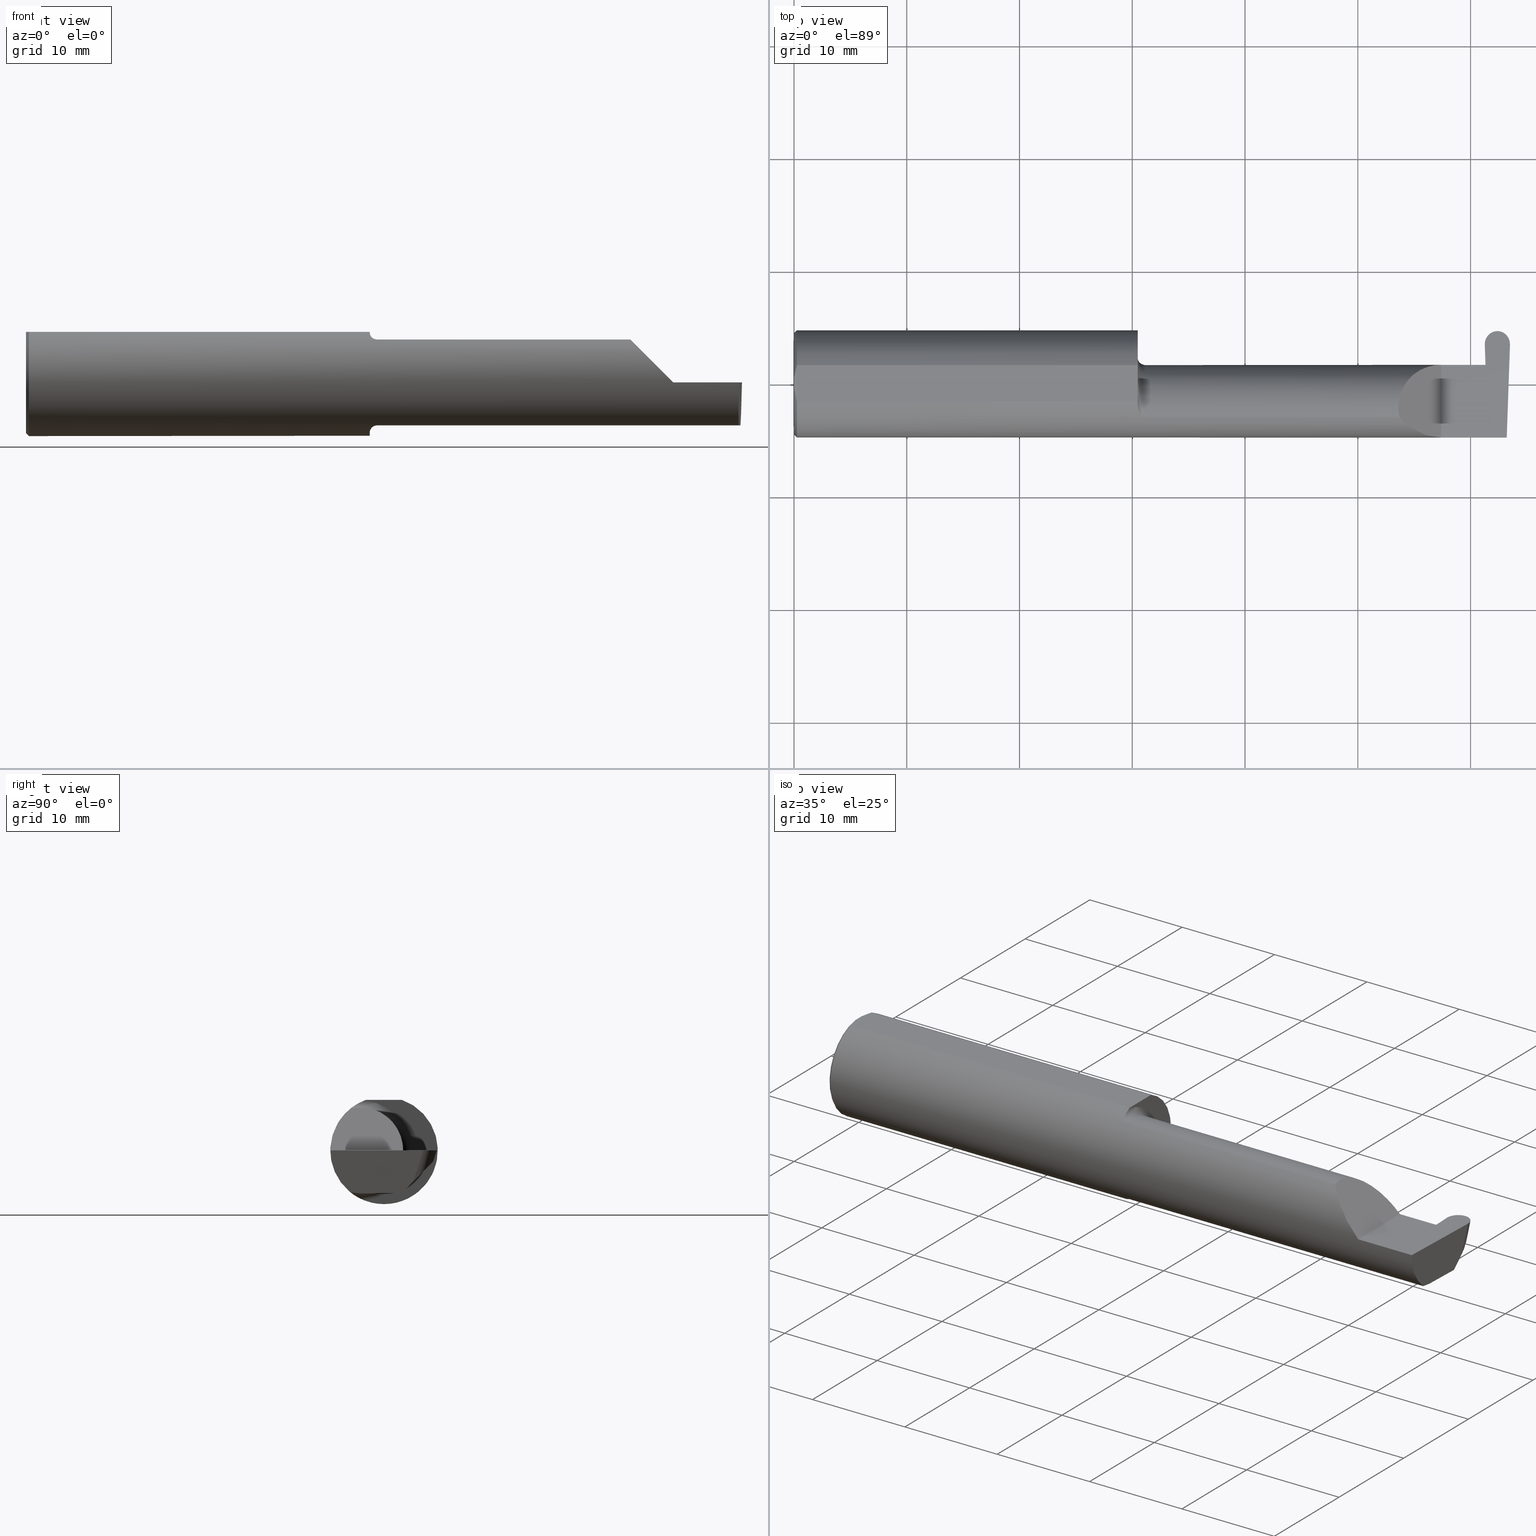
[diagram: canonical four-view strip — front | top / right | iso, engineering-drawing reading convention]
A machine part, canonical four-view strip (front | top / right | iso — engineering-drawing reading convention). The complete STEP part file that produces these views, byte-faithful:
ISO-10303-21;
HEADER;
FILE_DESCRIPTION (( 'STEP AP203' ),
    '1' );
FILE_NAME ('222185-GFR087-20.STEP',
    '2024-06-28T18:13:26',
    ( '' ),
    ( '' ),
    'SwSTEP 2.0',
    'SolidWorks 2024',
    '' );
FILE_SCHEMA (( 'CONFIG_CONTROL_DESIGN' ));
ENDSEC;

DATA;
#1 = LINE ( 'NONE', #546, #361 ) ;
#2 = DIRECTION ( 'NONE',  ( 0.000000000000000000, 0.000000000000000000, -1.000000000000000000 ) ) ;
#3 = EDGE_CURVE ( 'NONE', #35, #99, #77, .T. ) ;
#4 =( NAMED_UNIT ( * ) SI_UNIT ( $, .STERADIAN. ) SOLID_ANGLE_UNIT ( ) );
#5 = DIRECTION ( 'NONE',  ( 1.000000000000000000, 0.000000000000000000, 0.000000000000000000 ) ) ;
#6 = DIRECTION ( 'NONE',  ( 0.000000000000000000, 0.000000000000000000, 1.000000000000000000 ) ) ;
#7 = MANIFOLD_SOLID_BREP ( 'Radii', #117 ) ;
#8 = CARTESIAN_POINT ( 'NONE',  ( 0.01000000000000013205, 0.06325108694718235836, 0.1763499999999999235 ) ) ;
#9 = APPROVAL_STATUS ( 'not_yet_approved' ) ;
#10 = CARTESIAN_POINT ( 'NONE',  ( 2.414454177608814867, 0.06655862405286415429, -0.005234924505383332580 ) ) ;
#11 = VERTEX_POINT ( 'NONE', #30 ) ;
#12 = DIRECTION ( 'NONE',  ( -0.7071067811865509034, 0.000000000000000000, 0.7071067811865440200 ) ) ;
#13 = ADVANCED_FACE ( 'NONE', ( #186 ), #129, .T. ) ;
#14 = ORIENTED_EDGE ( 'NONE', *, *, #677, .T. ) ;
#15 = DIRECTION ( 'NONE',  ( -0.03489949670249319069, -0.9993908270190959842, 0.000000000000000000 ) ) ;
#16 = EDGE_LOOP ( 'NONE', ( #609, #96, #280, #514 ) ) ;
#17 = VECTOR ( 'NONE', #204, 39.37007874015748143 ) ;
#18 = DIRECTION ( 'NONE',  ( 0.02739170151060012562, -0.3089010440752013031, -0.9506996579664920288 ) ) ;
#19 = EDGE_LOOP ( 'NONE', ( #42, #381, #375 ) ) ;
#20 = EDGE_CURVE ( 'NONE', #634, #535, #571, .T. ) ;
#21 = COORDINATED_UNIVERSAL_TIME_OFFSET ( 8, 0, .BEHIND. ) ;
#22 = CARTESIAN_POINT ( 'NONE',  ( 2.113883229301068756, -0.1172600179964011363, 0.1461167706989299764 ) ) ;
#23 = DIRECTION ( 'NONE',  ( 0.000000000000000000, 0.000000000000000000, -1.000000000000000000 ) ) ;
#24 = APPROVAL_DATE_TIME ( #74, #510 ) ;
#25 = DIRECTION ( 'NONE',  ( -1.000000000000000000, 0.000000000000000000, 1.224646799147353947E-16 ) ) ;
#26 = CARTESIAN_POINT ( 'NONE',  ( 2.260000000000000231, -0.1873499999999999888, 2.939152317953647352E-17 ) ) ;
#27 = CC_DESIGN_APPROVAL ( #620, ( #574 ) ) ;
#28 = ORIENTED_EDGE ( 'NONE', *, *, #199, .F. ) ;
#29 = DIRECTION ( 'NONE',  ( 0.02739170151060012909, -0.3089010440752013031, -0.9506996579664919178 ) ) ;
#30 = CARTESIAN_POINT ( 'NONE',  ( 2.456309424548497322, 0.1846500000000000363, 0.000000000000000000 ) ) ;
#31 = ORIENTED_EDGE ( 'NONE', *, *, #244, .T. ) ;
#32 = DIRECTION ( 'NONE',  ( -0.03701744261649742712, -0.7066221440565398915, -0.7066221440565478851 ) ) ;
#33 = DIRECTION ( 'NONE',  ( 1.000000000000000000, -0.000000000000000000, -0.000000000000000000 ) ) ;
#34 = EDGE_CURVE ( 'NONE', #580, #468, #623, .T. ) ;
#35 = VERTEX_POINT ( 'NONE', #193 ) ;
#36 = CARTESIAN_POINT ( 'NONE',  ( 1.225000000000000089, -0.08335000000000010456, 0.000000000000000000 ) ) ;
#37 = CARTESIAN_POINT ( 'NONE',  ( 2.488471823259917226, -0.1172600179964006922, -0.1461167706989302817 ) ) ;
#38 = VECTOR ( 'NONE', #32, 39.37007874015748854 ) ;
#39 = VERTEX_POINT ( 'NONE', #464 ) ;
#40 = CARTESIAN_POINT ( 'NONE',  ( 2.489588163846105484, -0.08334999999999995191, -0.1500000000000000500 ) ) ;
#41 = CARTESIAN_POINT ( 'NONE',  ( 2.487529306701961485, -0.1623470442677541203, -0.1099340280425338268 ) ) ;
#42 = ORIENTED_EDGE ( 'NONE', *, *, #592, .F. ) ;
#43 = EDGE_CURVE ( 'NONE', #582, #176, #600, .T. ) ;
#44 = CARTESIAN_POINT ( 'NONE',  ( 0.01000000000000013205, 0.000000000000000000, -0.1873499999999999888 ) ) ;
#45 = LINE ( 'NONE', #422, #515 ) ;
#46 = ORIENTED_EDGE ( 'NONE', *, *, #226, .T. ) ;
#47 = CARTESIAN_POINT ( 'NONE',  ( 2.455902844999999779, 0.1800649307963945456, -0.01411139200474581350 ) ) ;
#48 = CARTESIAN_POINT ( 'NONE',  ( 2.417363697998881733, -2.354248658836814556, -0.1239957194858760936 ) ) ;
#49 = ORIENTED_EDGE ( 'NONE', *, *, #267, .F. ) ;
#50 = LOCAL_TIME ( 11, 13, 26.00000000000000000, #273 ) ;
#51 = COORDINATED_UNIVERSAL_TIME_OFFSET ( 8, 0, .BEHIND. ) ;
#52 = PLANE ( 'NONE',  #518 ) ;
#53 = APPROVAL_ROLE ( '' ) ;
#54 = CARTESIAN_POINT ( 'NONE',  ( 0.001616639753276021213, 0.03405189565400638246, 0.1763499999999999235 ) ) ;
#55 = DIRECTION ( 'NONE',  ( 1.000000000000000000, 0.000000000000000000, 0.000000000000000000 ) ) ;
#56 = DIRECTION ( 'NONE',  ( 0.000000000000000000, -1.000000000000000000, 0.000000000000000000 ) ) ;
#57 =( BOUNDED_CURVE ( )  B_SPLINE_CURVE ( 3, ( #47, #371, #687, #207 ),
 .UNSPECIFIED., .F., .T. ) 
 B_SPLINE_CURVE_WITH_KNOTS ( ( 4, 4 ),
 ( 4.712388980384693227, 4.728033103810992621 ),
 .UNSPECIFIED. ) 
 CURVE ( )  GEOMETRIC_REPRESENTATION_ITEM ( )  RATIONAL_B_SPLINE_CURVE ( ( 1.000000000000000000, 0.9999796052208393959, 0.9999796052208393959, 1.000000000000000000 ) ) 
 REPRESENTATION_ITEM ( '' )  );
#58 = CC_DESIGN_PERSON_AND_ORGANIZATION_ASSIGNMENT ( #321, #604, ( #448 ) ) ;
#59 = LOCAL_TIME ( 11, 13, 26.00000000000000000, #326 ) ;
#60 = ORGANIZATION ( 'UNSPECIFIED', 'UNSPECIFIED', '' ) ;
#61 = CARTESIAN_POINT ( 'NONE',  ( 2.414359555045604289, 0.06664999999999991764, -9.645561665750322649E-21 ) ) ;
#62 = ORIENTED_EDGE ( 'NONE', *, *, #284, .F. ) ;
#63 = PERSON_AND_ORGANIZATION_ROLE ( 'design_supplier' ) ;
#64 =( BOUNDED_CURVE ( )  B_SPLINE_CURVE ( 3, ( #625, #141, #678, #556 ),
 .UNSPECIFIED., .F., .F. ) 
 B_SPLINE_CURVE_WITH_KNOTS ( ( 4, 4 ),
 ( 1.627103621474502049, 3.225696776093220475 ),
 .UNSPECIFIED. ) 
 CURVE ( )  GEOMETRIC_REPRESENTATION_ITEM ( )  RATIONAL_B_SPLINE_CURVE ( ( 1.000000000000000000, 0.7981407609938095948, 0.7981407609938095948, 1.000000000000000000 ) ) 
 REPRESENTATION_ITEM ( '' )  );
#65 = EDGE_CURVE ( 'NONE', #490, #11, #64, .T. ) ;
#66 = DIRECTION ( 'NONE',  ( -1.000000000000000000, -8.453855317547640226E-17, -0.000000000000000000 ) ) ;
#67 = EDGE_CURVE ( 'NONE', #102, #363, #702, .T. ) ;
#68 = VERTEX_POINT ( 'NONE', #352 ) ;
#69 = LINE ( 'NONE', #351, #421 ) ;
#70 = DIRECTION ( 'NONE',  ( -1.000000000000000000, -8.453855317547640226E-17, -0.000000000000000000 ) ) ;
#71 = FACE_OUTER_BOUND ( 'NONE', #202, .T. ) ;
#72 = CIRCLE ( 'NONE', #224, 0.1873499999999999888 ) ;
#73 = CARTESIAN_POINT ( 'NONE',  ( 2.411899392914586659, 0.1370998259008695541, 0.000000000000000000 ) ) ;
#74 = DATE_AND_TIME ( #669, #299 ) ;
#75 = B_SPLINE_CURVE_WITH_KNOTS ( 'NONE', 3,
 ( #616, #188, #681, #404, #355, #131, #173, #511, #123, #566, #413, #613 ),
 .UNSPECIFIED., .F., .F.,
 ( 4, 2, 2, 2, 2, 4 ),
 ( 4.423516731080811751E-05, 0.0004615475116586728187, 0.0008788598560065375266, 0.001296172200354402289, 0.001504828372528334507, 0.001713484544702266943 ),
 .UNSPECIFIED. ) ;
#76 = CARTESIAN_POINT ( 'NONE',  ( 2.405177986947488300, 0.06658908270190946888, -0.003489949670251385645 ) ) ;
#77 = LINE ( 'NONE', #132, #444 ) ;
#78 = DIRECTION ( 'NONE',  ( 0.000000000000000000, 0.9510565162951533091, -0.3090169943749481729 ) ) ;
#79 = ORIENTED_EDGE ( 'NONE', *, *, #349, .F. ) ;
#80 = ORIENTED_EDGE ( 'NONE', *, *, #441, .F. ) ;
#81 = CARTESIAN_POINT ( 'NONE',  ( 2.499973137204639428, 0.1390138764844880415, 0.000000000000000000 ) ) ;
#82 = ORIENTED_EDGE ( 'NONE', *, *, #162, .F. ) ;
#83 = AXIS2_PLACEMENT_3D ( 'NONE', #81, #461, #15 ) ;
#84 = VERTEX_POINT ( 'NONE', #675 ) ;
#85 = LINE ( 'NONE', #360, #172 ) ;
#86 = EDGE_CURVE ( 'NONE', #102, #35, #236, .T. ) ;
#87 = CARTESIAN_POINT ( 'NONE',  ( 2.411899392914586659, 0.1370998259008695541, 0.000000000000000000 ) ) ;
#88 = ORIENTED_EDGE ( 'NONE', *, *, #667, .F. ) ;
#89 = DIRECTION ( 'NONE',  ( 1.000000000000000000, 0.000000000000000000, 0.000000000000000000 ) ) ;
#90 = CARTESIAN_POINT ( 'NONE',  ( 1.213203859946833996, -0.1120371980050639676, -0.1501764597936557921 ) ) ;
#91 = ORIENTED_EDGE ( 'NONE', *, *, #374, .F. ) ;
#92 = FACE_OUTER_BOUND ( 'NONE', #367, .T. ) ;
#93 = DIRECTION ( 'NONE',  ( 1.000000000000000000, 8.453855317547640226E-17, 0.000000000000000000 ) ) ;
#94 = EDGE_CURVE ( 'NONE', #490, #606, #621, .T. ) ;
#95 = VECTOR ( 'NONE', #424, 39.37007874015748143 ) ;
#96 = ORIENTED_EDGE ( 'NONE', *, *, #419, .F. ) ;
#97 = CARTESIAN_POINT ( 'NONE',  ( 0.000000000000000000, -0.01880691362238934641, 0.1763499999999999235 ) ) ;
#98 = CARTESIAN_POINT ( 'NONE',  ( 2.876828993045917215, 0.1873499999999998500, 0.1763499999999999235 ) ) ;
#99 = VERTEX_POINT ( 'NONE', #509 ) ;
#100 = DIRECTION ( 'NONE',  ( 1.000000000000000000, 8.453855317547640226E-17, 0.000000000000000000 ) ) ;
#101 = CARTESIAN_POINT ( 'NONE',  ( 1.818402845000000045, -0.1172600179964007477, 0.1461167706989302817 ) ) ;
#102 = VERTEX_POINT ( 'NONE', #617 ) ;
#103 = CARTESIAN_POINT ( 'NONE',  ( 0.000000000000000000, 0.000000000000000000, 0.000000000000000000 ) ) ;
#104 = CARTESIAN_POINT ( 'NONE',  ( 1.199999999999999956, -0.08335000000000007681, 0.000000000000000000 ) ) ;
#105 = ORIENTED_EDGE ( 'NONE', *, *, #472, .T. ) ;
#106 = CIRCLE ( 'NONE', #552, 0.1749999999999999889 ) ;
#107 = PERSON_AND_ORGANIZATION ( #345, #60 ) ;
#108 = DIRECTION ( 'NONE',  ( 0.7071067811865511255, 0.000000000000000000, -0.7071067811865439090 ) ) ;
#109 =( LENGTH_UNIT ( ) NAMED_UNIT ( * ) SI_UNIT ( $, .METRE. ) );
#110 = CARTESIAN_POINT ( 'NONE',  ( 2.496782013450319582, 0.1018667288808076804, -0.1084363226623426962 ) ) ;
#111 = LENGTH_MEASURE_WITH_UNIT ( LENGTH_MEASURE( 0.02539999999999999897 ), #109 );
#112 = B_SPLINE_CURVE_WITH_KNOTS ( 'NONE', 3,
 ( #644, #583, #533, #97 ),
 .UNSPECIFIED., .F., .F.,
 ( 4, 4 ),
 ( 0.009771445421851331775, 0.01092787937989104369 ),
 .UNSPECIFIED. ) ;
#113 = LINE ( 'NONE', #551, #335 ) ;
#114 = EDGE_CURVE ( 'NONE', #363, #435, #125, .T. ) ;
#115 = CC_DESIGN_APPROVAL ( #359, ( #153 ) ) ;
#116 = PLANE ( 'NONE',  #119 ) ;
#117 = CLOSED_SHELL ( 'NONE', ( #124, #205, #560, #275, #405, #190, #285, #13, #549, #339, #659, #253, #603, #428, #168, #396, #139, #449, #459 ) ) ;
#118 = ORIENTED_EDGE ( 'NONE', *, *, #480, .T. ) ;
#119 = AXIS2_PLACEMENT_3D ( 'NONE', #492, #541, #12 ) ;
#120 = ORIENTED_EDGE ( 'NONE', *, *, #148, .F. ) ;
#121 = LINE ( 'NONE', #508, #633 ) ;
#122 = VERTEX_POINT ( 'NONE', #73 ) ;
#123 = CARTESIAN_POINT ( 'NONE',  ( 1.215004157323697154, -0.1137044537483318657, 0.1489098419202427026 ) ) ;
#124 = ADVANCED_FACE ( 'NONE', ( #290 ), #289, .T. ) ;
#125 = LINE ( 'NONE', #344, #649 ) ;
#126 = DIRECTION ( 'NONE',  ( 0.000000000000000000, 0.9510565162951534202, -0.3090169943749480619 ) ) ;
#127 = AXIS2_PLACEMENT_3D ( 'NONE', #169, #271, #165 ) ;
#128 = CARTESIAN_POINT ( 'NONE',  ( 2.150065971957465294, -0.1623470442677543146, 0.1099340280425333688 ) ) ;
#129 = CONICAL_SURFACE ( 'NONE', #586, 0.1773499999999999521, 0.7853981633974431720 ) ;
#130 = PERSON_AND_ORGANIZATION ( #345, #60 ) ;
#131 = CARTESIAN_POINT ( 'NONE',  ( 1.206287624083520527, -0.1021858045380147351, 0.1571187174372874473 ) ) ;
#132 = CARTESIAN_POINT ( 'NONE',  ( 2.414604620902816468, 0.1945090424343657032, -0.01579400910878361181 ) ) ;
#133 = ORIENTED_EDGE ( 'NONE', *, *, #526, .F. ) ;
#134 = SHAPE_DEFINITION_REPRESENTATION ( #403, #478 ) ;
#135 = CARTESIAN_POINT ( 'NONE',  ( 2.496782013450319582, 0.1018667288808076804, -0.1084363226623426962 ) ) ;
#136 = CARTESIAN_POINT ( 'NONE',  ( 2.417117327835069940, -0.08334999999999997966, -0.1499999999999999944 ) ) ;
#137 = EDGE_CURVE ( 'NONE', #35, #634, #45, .T. ) ;
#138 = ORIENTED_EDGE ( 'NONE', *, *, #365, .F. ) ;
#139 = ADVANCED_FACE ( 'NONE', ( #525 ), #256, .F. ) ;
#140 = LINE ( 'NONE', #481, #95 ) ;
#141 = CARTESIAN_POINT ( 'NONE',  ( 2.500873303789769242, 0.1647912748130947458, 3.031548046095857169E-18 ) ) ;
#142 = CC_DESIGN_SECURITY_CLASSIFICATION ( #513, ( #153 ) ) ;
#143 = ORIENTED_EDGE ( 'NONE', *, *, #67, .F. ) ;
#144 = CARTESIAN_POINT ( 'NONE',  ( -0.001039370078739994957, 0.1846500000000000363, 0.000000000000000000 ) ) ;
#145 = FACE_OUTER_BOUND ( 'NONE', #538, .T. ) ;
#146 = EDGE_LOOP ( 'NONE', ( #118, #698, #612, #254 ) ) ;
#147 = CARTESIAN_POINT ( 'NONE',  ( 3.749399456654646757E-32, -0.1873499999999999610, 3.061616997868383634E-16 ) ) ;
#148 = EDGE_CURVE ( 'NONE', #175, #122, #258, .T. ) ;
#149 = CARTESIAN_POINT ( 'NONE',  ( 2.488576259503493926, -0.1873499999999999888, 0.000000000000000000 ) ) ;
#150 = ORIENTED_EDGE ( 'NONE', *, *, #293, .F. ) ;
#151 = DIRECTION ( 'NONE',  ( 0.000000000000000000, -0.9510565162951534202, 0.3090169943749482284 ) ) ;
#152 = CARTESIAN_POINT ( 'NONE',  ( 2.454465662695322070, 0.1638575727295927265, -0.06399251110804611564 ) ) ;
#153 = PRODUCT_DEFINITION_FORMATION_WITH_SPECIFIED_SOURCE ( 'ANY', '', #448, .NOT_KNOWN. ) ;
#154 = ORIENTED_EDGE ( 'NONE', *, *, #216, .F. ) ;
#155 = VECTOR ( 'NONE', #567, 39.37007874015748854 ) ;
#156 = PLANE ( 'NONE',  #269 ) ;
#157 = DIRECTION ( 'NONE',  ( 0.000000000000000000, -0.9998476951563912696, 0.01745240643728358451 ) ) ;
#158 = ORIENTED_EDGE ( 'NONE', *, *, #3, .T. ) ;
#159 = CARTESIAN_POINT ( 'NONE',  ( 0.000000000000000000, -0.01880691362238934641, 0.1763499999999999235 ) ) ;
#160 = ORIENTED_EDGE ( 'NONE', *, *, #700, .F. ) ;
#161 = EDGE_CURVE ( 'NONE', #176, #399, #223, .T. ) ;
#162 = EDGE_CURVE ( 'NONE', #11, #84, #252, .T. ) ;
#163 = CARTESIAN_POINT ( 'NONE',  ( 0.000000000000000000, 0.000000000000000000, -0.1773499999999999521 ) ) ;
#164 = AXIS2_PLACEMENT_3D ( 'NONE', #661, #166, #388 ) ;
#165 = DIRECTION ( 'NONE',  ( -8.453855317547640226E-17, 1.000000000000000000, 0.000000000000000000 ) ) ;
#166 = DIRECTION ( 'NONE',  ( -1.000000000000000000, -0.000000000000000000, -0.000000000000000000 ) ) ;
#167 = LINE ( 'NONE', #322, #397 ) ;
#168 = ADVANCED_FACE ( 'NONE', ( #208 ), #311, .F. ) ;
#169 = CARTESIAN_POINT ( 'NONE',  ( 1.199999999999999956, 0.1873499999999998222, 0.000000000000000000 ) ) ;
#170 = CARTESIAN_POINT ( 'NONE',  ( 0.000000000000000000, 0.000000000000000000, 0.000000000000000000 ) ) ;
#171 = ORIENTED_EDGE ( 'NONE', *, *, #293, .T. ) ;
#172 = VECTOR ( 'NONE', #100, 39.37007874015748143 ) ;
#173 = CARTESIAN_POINT ( 'NONE',  ( 1.208475602106621638, -0.1064978748893407323, 0.1542035505680382224 ) ) ;
#174 = VECTOR ( 'NONE', #93, 39.37007874015748143 ) ;
#175 = VERTEX_POINT ( 'NONE', #693 ) ;
#176 = VERTEX_POINT ( 'NONE', #575 ) ;
#177 = CARTESIAN_POINT ( 'NONE',  ( 2.455849646417702203, 0.1388183738650295151, 0.001331749772420890180 ) ) ;
#178 = CARTESIAN_POINT ( 'NONE',  ( 1.225000000000000089, -0.08335000000000007681, 0.000000000000000000 ) ) ;
#179 = EDGE_LOOP ( 'NONE', ( #523, #270, #683, #194 ) ) ;
#180 = CARTESIAN_POINT ( 'NONE',  ( 0.01000000000000013205, -0.06325108694718235836, 0.1763499999999999235 ) ) ;
#181 = EDGE_CURVE ( 'NONE', #582, #468, #366, .T. ) ;
#182 = DESIGN_CONTEXT ( 'detailed design', #622, 'design' ) ;
#183 = DIRECTION ( 'NONE',  ( 0.000000000000000000, 0.000000000000000000, -1.000000000000000000 ) ) ;
#184 = CARTESIAN_POINT ( 'NONE',  ( 2.454465662695322070, 0.1220110860126060182, -0.05039576335554840636 ) ) ;
#185 = AXIS2_PLACEMENT_3D ( 'NONE', #636, #89, #640 ) ;
#186 = FACE_OUTER_BOUND ( 'NONE', #527, .T. ) ;
#187 = VERTEX_POINT ( 'NONE', #373 ) ;
#188 = CARTESIAN_POINT ( 'NONE',  ( 1.199999999999999289, -0.07367581953296703512, 0.1723443821957854061 ) ) ;
#189 = CARTESIAN_POINT ( 'NONE',  ( 2.202189699843947857, -0.1873500000000000165, 0.05781030015605082700 ) ) ;
#190 = ADVANCED_FACE ( 'NONE', ( #145 ), #215, .T. ) ;
#191 = EDGE_LOOP ( 'NONE', ( #475, #646, #512, #82, #338 ) ) ;
#192 = FACE_OUTER_BOUND ( 'NONE', #146, .T. ) ;
#193 = CARTESIAN_POINT ( 'NONE',  ( 2.417072018435237002, 0.06030305154315081240, -0.1500000000000000500 ) ) ;
#194 = ORIENTED_EDGE ( 'NONE', *, *, #20, .T. ) ;
#195 = CARTESIAN_POINT ( 'NONE',  ( 2.405208445596533462, 0.06661954135095470020, -0.001744974835125692606 ) ) ;
#196 = CARTESIAN_POINT ( 'NONE',  ( 1.206304331342287650, -0.1022198306720692035, -0.1570962426853817762 ) ) ;
#197 = AXIS2_PLACEMENT_3D ( 'NONE', #104, #545, #602 ) ;
#198 = ORIENTED_EDGE ( 'NONE', *, *, #114, .T. ) ;
#199 = EDGE_CURVE ( 'NONE', #242, #435, #437, .T. ) ;
#200 = LINE ( 'NONE', #536, #346 ) ;
#201 = DIRECTION ( 'NONE',  ( 0.01806679408117492502, 0.000000000000000000, -0.9998367821557817559 ) ) ;
#202 = EDGE_LOOP ( 'NONE', ( #120, #406, #423, #247, #460 ) ) ;
#203 = CARTESIAN_POINT ( 'NONE',  ( 2.260000000000000231, 0.06664999999999994540, 1.592040838891559588E-16 ) ) ;
#204 = DIRECTION ( 'NONE',  ( 1.000000000000000000, -0.000000000000000000, -0.000000000000000000 ) ) ;
#205 = ADVANCED_FACE ( 'NONE', ( #474 ), #261, .F. ) ;
#206 = VERTEX_POINT ( 'NONE', #585 ) ;
#207 = CARTESIAN_POINT ( 'NONE',  ( 2.455902844999999779, 0.1722946655495198598, -0.03800838599362971193 ) ) ;
#208 = FACE_OUTER_BOUND ( 'NONE', #414, .T. ) ;
#209 = CC_DESIGN_PERSON_AND_ORGANIZATION_ASSIGNMENT ( #221, #539, ( #574 ) ) ;
#210 = VECTOR ( 'NONE', #528, 39.37007874015748143 ) ;
#211 = ORIENTED_EDGE ( 'NONE', *, *, #700, .T. ) ;
#212 = VECTOR ( 'NONE', #458, 39.37007874015748143 ) ;
#213 =( BOUNDED_CURVE ( )  B_SPLINE_CURVE ( 3, ( #37, #41, #590, #149 ),
 .UNSPECIFIED., .F., .T. ) 
 B_SPLINE_CURVE_WITH_KNOTS ( ( 4, 4 ),
 ( 5.852427379562186616, 6.746954780470634461 ),
 .UNSPECIFIED. ) 
 CURVE ( )  GEOMETRIC_REPRESENTATION_ITEM ( )  RATIONAL_B_SPLINE_CURVE ( ( 1.000000000000000000, 0.9344226172588802060, 0.9344226172588802060, 1.000000000000000000 ) ) 
 REPRESENTATION_ITEM ( '' )  );
#214 = CIRCLE ( 'NONE', #707, 0.1873499999999999888 ) ;
#215 = PLANE ( 'NONE',  #325 ) ;
#216 = EDGE_CURVE ( 'NONE', #435, #122, #530, .T. ) ;
#217 = ORIENTED_EDGE ( 'NONE', *, *, #230, .F. ) ;
#218 = CARTESIAN_POINT ( 'NONE',  ( 1.199999999999999956, -0.06851976604679066440, 0.1743704796142198643 ) ) ;
#219 = DIRECTION ( 'NONE',  ( -1.000000000000000000, -8.453855317547640226E-17, -0.000000000000000000 ) ) ;
#220 = CC_DESIGN_PERSON_AND_ORGANIZATION_ASSIGNMENT ( #294, #63, ( #153 ) ) ;
#221 = PERSON_AND_ORGANIZATION ( #345, #60 ) ;
#222 = LINE ( 'NONE', #163, #301 ) ;
#223 = B_SPLINE_CURVE_WITH_KNOTS ( 'NONE', 3,
 ( #637, #655, #696, #650, #90, #318, #196, #522, #701, #268, #425, #485 ),
 .UNSPECIFIED., .F., .F.,
 ( 4, 2, 2, 2, 2, 4 ),
 ( 1.967976973692733563E-07, 0.0002120314145722264321, 0.0004238660314470835545, 0.0008475352651967978535, 0.001271204498946512315, 0.001694873732696226560 ),
 .UNSPECIFIED. ) ;
#224 = AXIS2_PLACEMENT_3D ( 'NONE', #550, #55, #705 ) ;
#225 = MECHANICAL_CONTEXT ( 'NONE', #618, 'mechanical' ) ;
#226 = EDGE_CURVE ( 'NONE', #68, #606, #213, .T. ) ;
#227 = AXIS2_PLACEMENT_3D ( 'NONE', #534, #641, #433 ) ;
#228 = CARTESIAN_POINT ( 'NONE',  ( 2.488471823259917226, -0.1172600179964006922, -0.1461167706989302817 ) ) ;
#229 = CARTESIAN_POINT ( 'NONE',  ( 0.000000000000000000, 0.000000000000000000, 0.000000000000000000 ) ) ;
#230 = EDGE_CURVE ( 'NONE', #680, #682, #214, .T. ) ;
#231 = ORIENTED_EDGE ( 'NONE', *, *, #615, .F. ) ;
#232 = CARTESIAN_POINT ( 'NONE',  ( 2.488815404197634251, -0.1061291577212409021, -0.1486999626928445506 ) ) ;
#233 = ORIENTED_EDGE ( 'NONE', *, *, #542, .T. ) ;
#234 = DATE_AND_TIME ( #494, #50 ) ;
#235 = CYLINDRICAL_SURFACE ( 'NONE', #572, 0.04399999999999999745 ) ;
#236 = LINE ( 'NONE', #292, #543 ) ;
#237 = FACE_OUTER_BOUND ( 'NONE', #630, .T. ) ;
#238 = DIRECTION ( 'NONE',  ( 1.000000000000000000, 0.000000000000000000, 0.000000000000000000 ) ) ;
#239 = APPROVAL_ROLE ( '' ) ;
#240 = DIRECTION ( 'NONE',  ( -1.224646799147353947E-16, 0.000000000000000000, -1.000000000000000000 ) ) ;
#241 = ORIENTED_EDGE ( 'NONE', *, *, #308, .F. ) ;
#242 = VERTEX_POINT ( 'NONE', #499 ) ;
#243 = CARTESIAN_POINT ( 'NONE',  ( 2.412901126908979510, 0.1423838600483241235, -0.06791919149482579521 ) ) ;
#244 = EDGE_CURVE ( 'NONE', #259, #587, #642, .T. ) ;
#245 = CARTESIAN_POINT ( 'NONE',  ( 2.113883229301068756, -0.1172600179964011363, 0.1461167706989299764 ) ) ;
#246 = AXIS2_PLACEMENT_3D ( 'NONE', #178, #70, #632 ) ;
#247 = ORIENTED_EDGE ( 'NONE', *, *, #472, .F. ) ;
#248 = LINE ( 'NONE', #410, #257 ) ;
#249 = CARTESIAN_POINT ( 'NONE',  ( 0.000000000000000000, 0.000000000000000000, 0.000000000000000000 ) ) ;
#250 = ORIENTED_EDGE ( 'NONE', *, *, #374, .T. ) ;
#251 = DIRECTION ( 'NONE',  ( 8.453855317547640226E-17, -1.000000000000000000, 0.000000000000000000 ) ) ;
#252 = LINE ( 'NONE', #152, #489 ) ;
#253 = ADVANCED_FACE ( 'NONE', ( #274 ), #657, .F. ) ;
#254 = ORIENTED_EDGE ( 'NONE', *, *, #389, .F. ) ;
#255 = CYLINDRICAL_SURFACE ( 'NONE', #323, 0.1873499999999999888 ) ;
#256 = PLANE ( 'NONE',  #706 ) ;
#257 = VECTOR ( 'NONE', #298, 39.37007874015748143 ) ;
#258 =( BOUNDED_CURVE ( )  B_SPLINE_CURVE ( 3, ( #537, #477, #264, #87 ),
 .UNSPECIFIED., .F., .F. ) 
 B_SPLINE_CURVE_WITH_KNOTS ( ( 4, 4 ),
 ( 3.057488531086357764, 4.656081685705083295 ),
 .UNSPECIFIED. ) 
 CURVE ( )  GEOMETRIC_REPRESENTATION_ITEM ( )  RATIONAL_B_SPLINE_CURVE ( ( 1.000000000000000000, 0.7981407609938078185, 0.7981407609938078185, 1.000000000000000000 ) ) 
 REPRESENTATION_ITEM ( '' )  );
#259 = VERTEX_POINT ( 'NONE', #501 ) ;
#260 = CARTESIAN_POINT ( 'NONE',  ( 0.01000000000000013205, 0.06325108694718235836, 0.1763499999999999235 ) ) ;
#261 = PLANE ( 'NONE',  #691 ) ;
#262 = ORIENTED_EDGE ( 'NONE', *, *, #199, .T. ) ;
#263 = LINE ( 'NONE', #484, #443 ) ;
#264 = CARTESIAN_POINT ( 'NONE',  ( 2.410932386210230760, 0.1647912748130948291, 1.110789957736176039E-17 ) ) ;
#265 = ORIENTED_EDGE ( 'NONE', *, *, #94, .T. ) ;
#266 = APPLICATION_PROTOCOL_DEFINITION ( 'international standard', 'config_control_design', 1994, #622 ) ;
#267 = EDGE_CURVE ( 'NONE', #68, #535, #357, .T. ) ;
#268 = CARTESIAN_POINT ( 'NONE',  ( 1.200358271039144276, -0.07873626113568089890, -0.1700887912276896063 ) ) ;
#269 = AXIS2_PLACEMENT_3D ( 'NONE', #144, #151, #577 ) ;
#270 = ORIENTED_EDGE ( 'NONE', *, *, #86, .T. ) ;
#271 = DIRECTION ( 'NONE',  ( 1.000000000000000000, 8.453855317547640226E-17, 0.000000000000000000 ) ) ;
#272 = CARTESIAN_POINT ( 'NONE',  ( 2.733184360054362383, -0.08334999999999995191, -0.1500000000000000500 ) ) ;
#273 = COORDINATED_UNIVERSAL_TIME_OFFSET ( 8, 0, .BEHIND. ) ;
#274 = FACE_OUTER_BOUND ( 'NONE', #179, .T. ) ;
#275 = ADVANCED_FACE ( 'NONE', ( #327 ), #116, .F. ) ;
#276 = CARTESIAN_POINT ( 'NONE',  ( 0.000000000000000000, 0.01880691362238934988, 0.1763499999999999235 ) ) ;
#277 = AXIS2_PLACEMENT_3D ( 'NONE', #103, #6, #379 ) ;
#278 = PERSON_AND_ORGANIZATION ( #345, #60 ) ;
#279 = DIRECTION ( 'NONE',  ( -0.000000000000000000, 1.000000000000000000, -0.000000000000000000 ) ) ;
#280 = ORIENTED_EDGE ( 'NONE', *, *, #230, .T. ) ;
#281 = LINE ( 'NONE', #61, #651 ) ;
#282 = ORIENTED_EDGE ( 'NONE', *, *, #592, .T. ) ;
#283 = DIRECTION ( 'NONE',  ( 1.000000000000000000, 0.000000000000000000, 0.000000000000000000 ) ) ;
#284 = EDGE_CURVE ( 'NONE', #99, #363, #281, .T. ) ;
#285 = ADVANCED_FACE ( 'NONE', ( #336 ), #52, .F. ) ;
#286 = COORDINATED_UNIVERSAL_TIME_OFFSET ( 8, 0, .BEHIND. ) ;
#287 = TOROIDAL_SURFACE ( 'NONE', #647, 0.1749999999999999889, 0.02500000000000007078 ) ;
#288 = LINE ( 'NONE', #506, #333 ) ;
#289 = CONICAL_SURFACE ( 'NONE', #531, 0.1773499999999999521, 0.7853981633974431720 ) ;
#290 = FACE_OUTER_BOUND ( 'NONE', #469, .T. ) ;
#291 = CARTESIAN_POINT ( 'NONE',  ( 2.415023676549680420, 0.1018667288808076665, -0.1084363226623427101 ) ) ;
#292 = CARTESIAN_POINT ( 'NONE',  ( 2.417117359278221134, -0.08344969023253202833, -0.1500000000000000500 ) ) ;
#293 = EDGE_CURVE ( 'NONE', #68, #176, #167, .T. ) ;
#294 = PERSON_AND_ORGANIZATION ( #345, #60 ) ;
#295 = PLANE ( 'NONE',  #561 ) ;
#296 = ORIENTED_EDGE ( 'NONE', *, *, #34, .T. ) ;
#297 = ORIENTED_EDGE ( 'NONE', *, *, #3, .F. ) ;
#298 = DIRECTION ( 'NONE',  ( -8.453855317547640226E-17, 1.000000000000000000, 0.000000000000000000 ) ) ;
#299 = LOCAL_TIME ( 11, 13, 26.00000000000000000, #286 ) ;
#300 = ORIENTED_EDGE ( 'NONE', *, *, #244, .F. ) ;
#301 = VECTOR ( 'NONE', #108, 39.37007874015748143 ) ;
#302 = ORIENTED_EDGE ( 'NONE', *, *, #349, .T. ) ;
#303 = CARTESIAN_POINT ( 'NONE',  ( 2.497044125482537957, 0.1068701584290903395, -0.1034328931140599678 ) ) ;
#304 = CARTESIAN_POINT ( 'NONE',  ( 2.411832552795360574, 0.1390138764844879860, 0.000000000000000000 ) ) ;
#305 = ORIENTED_EDGE ( 'NONE', *, *, #114, .F. ) ;
#306 = CARTESIAN_POINT ( 'NONE',  ( 2.260000000000000231, 0.06664999999999994540, 1.592040838891559588E-16 ) ) ;
#307 = DIRECTION ( 'NONE',  ( 0.000000000000000000, 0.000000000000000000, 1.000000000000000000 ) ) ;
#308 = EDGE_CURVE ( 'NONE', #363, #39, #439, .T. ) ;
#309 = ORIENTED_EDGE ( 'NONE', *, *, #94, .F. ) ;
#310 = CARTESIAN_POINT ( 'NONE',  ( 2.155331797197862720, 0.06664999999999991764, 0.1046682028021363176 ) ) ;
#311 = PLANE ( 'NONE',  #227 ) ;
#312 = CIRCLE ( 'NONE', #185, 0.1873499999999999888 ) ;
#313 = ORIENTED_EDGE ( 'NONE', *, *, #328, .T. ) ;
#314 = CARTESIAN_POINT ( 'NONE',  ( 1.225000000000000089, -0.1172600179964007477, 0.1461167706989301984 ) ) ;
#315 = ORIENTED_EDGE ( 'NONE', *, *, #594, .F. ) ;
#316 = EDGE_CURVE ( 'NONE', #694, #643, #222, .T. ) ;
#317 = CARTESIAN_POINT ( 'NONE',  ( 2.113883229301068756, -0.1172600179964011363, 0.1461167706989299764 ) ) ;
#318 = CARTESIAN_POINT ( 'NONE',  ( 1.208439486659306672, -0.1064616213911159376, -0.1542305641651500192 ) ) ;
#319 = B_SPLINE_CURVE_WITH_KNOTS ( 'NONE', 3,
 ( #347, #76, #195, #431 ),
 .UNSPECIFIED., .F., .F.,
 ( 4, 4 ),
 ( 0.000000000000000000, 1.000000000000000000 ),
 .UNSPECIFIED. ) ;
#320 = ORIENTED_EDGE ( 'NONE', *, *, #568, .F. ) ;
#321 = PERSON_AND_ORGANIZATION ( #345, #60 ) ;
#322 = CARTESIAN_POINT ( 'NONE',  ( 1.818402845000000045, -0.1172600179964007477, -0.1461167706989302817 ) ) ;
#323 = AXIS2_PLACEMENT_3D ( 'NONE', #521, #695, #420 ) ;
#324 = ORIENTED_EDGE ( 'NONE', *, *, #161, .F. ) ;
#325 = AXIS2_PLACEMENT_3D ( 'NONE', #98, #307, #488 ) ;
#326 = COORDINATED_UNIVERSAL_TIME_OFFSET ( 8, 0, .BEHIND. ) ;
#327 = FACE_OUTER_BOUND ( 'NONE', #19, .T. ) ;
#328 = EDGE_CURVE ( 'NONE', #187, #455, #407, .T. ) ;
#329 = DIRECTION ( 'NONE',  ( 0.000000000000000000, 1.000000000000000000, 0.000000000000000000 ) ) ;
#330 = CARTESIAN_POINT ( 'NONE',  ( 1.199999999999999956, -0.08335000000000007681, 0.000000000000000000 ) ) ;
#331 = CARTESIAN_POINT ( 'NONE',  ( 0.000000000000000000, 0.000000000000000000, -0.1773499999999999521 ) ) ;
#332 = CARTESIAN_POINT ( 'NONE',  ( 2.498904563091020492, 0.1423838600483239292, -0.06791919149482596174 ) ) ;
#333 = VECTOR ( 'NONE', #18, 39.37007874015747433 ) ;
#334 = APPROVAL_ROLE ( '' ) ;
#335 = VECTOR ( 'NONE', #279, 39.37007874015748143 ) ;
#336 = FACE_OUTER_BOUND ( 'NONE', #544, .T. ) ;
#337 = ORIENTED_EDGE ( 'NONE', *, *, #137, .F. ) ;
#338 = ORIENTED_EDGE ( 'NONE', *, *, #65, .F. ) ;
#339 = ADVANCED_FACE ( 'NONE', ( #599 ), #595, .T. ) ;
#340 = DIRECTION ( 'NONE',  ( -0.02739170151059987929, -0.3089010440752013587, -0.9506996579664920288 ) ) ;
#341 = ORIENTED_EDGE ( 'NONE', *, *, #493, .T. ) ;
#342 = DATE_AND_TIME ( #408, #608 ) ;
#343 = CARTESIAN_POINT ( 'NONE',  ( 2.499906297085412898, 0.1370998259008695819, 0.000000000000000000 ) ) ;
#344 = CARTESIAN_POINT ( 'NONE',  ( 2.414359555045604289, 0.06664999999999991764, -9.645561665750322649E-21 ) ) ;
#345 = PERSON ( 'UNSPECIFIED', 'UNSPECIFIED', 'UNSPECIFIED', ('UNSPECIFIED'), ('UNSPECIFIED'), ('UNSPECIFIED') ) ;
#346 = VECTOR ( 'NONE', #684, 39.37007874015748143 ) ;
#347 = CARTESIAN_POINT ( 'NONE',  ( 2.405147528298442694, 0.06655862405286425143, -0.005234924505377073697 ) ) ;
#348 = CARTESIAN_POINT ( 'NONE',  ( 0.000000000000000000, 0.000000000000000000, 0.000000000000000000 ) ) ;
#349 = EDGE_CURVE ( 'NONE', #666, #259, #113, .T. ) ;
#350 = PERSON_AND_ORGANIZATION_ROLE ( 'classification_officer' ) ;
#351 = CARTESIAN_POINT ( 'NONE',  ( 0.000000000000000000, -0.06325108694718235836, 0.1763499999999999235 ) ) ;
#352 = CARTESIAN_POINT ( 'NONE',  ( 2.488471823259917226, -0.1172600179964006922, -0.1461167706989302817 ) ) ;
#353 = ORIENTED_EDGE ( 'NONE', *, *, #626, .T. ) ;
#354 = DIMENSIONAL_EXPONENTS ( 1.000000000000000000, 0.000000000000000000, 0.000000000000000000, 0.000000000000000000, 0.000000000000000000, 0.000000000000000000, 0.000000000000000000 ) ;
#355 = CARTESIAN_POINT ( 'NONE',  ( 1.202945243422983479, -0.09312071749437436652, 0.1626553472577906001 ) ) ;
#356 = CARTESIAN_POINT ( 'NONE',  ( 2.415998328610626800, 0.06357628547474553082, -0.09063792740366206913 ) ) ;
#357 =( BOUNDED_CURVE ( )  B_SPLINE_CURVE ( 3, ( #228, #232, #496, #452 ),
 .UNSPECIFIED., .F., .F. ) 
 B_SPLINE_CURVE_WITH_KNOTS ( ( 4, 4 ),
 ( 0.8789888184544053518, 1.107026853503850328 ),
 .UNSPECIFIED. ) 
 CURVE ( )  GEOMETRIC_REPRESENTATION_ITEM ( )  RATIONAL_B_SPLINE_CURVE ( ( 1.000000000000000000, 0.9956712472009929815, 0.9956712472009929815, 1.000000000000000000 ) ) 
 REPRESENTATION_ITEM ( '' )  );
#358 = ORIENTED_EDGE ( 'NONE', *, *, #419, .T. ) ;
#359 = APPROVAL ( #440, 'UNSPECIFIED' ) ;
#360 = CARTESIAN_POINT ( 'NONE',  ( 1.199999999999999956, 0.06664999999999984825, 1.592040838891559588E-16 ) ) ;
#361 = VECTOR ( 'NONE', #387, 39.37007874015748854 ) ;
#362 = DIRECTION ( 'NONE',  ( -0.02739170151059987582, -0.3089010440752013587, -0.9506996579664918068 ) ) ;
#363 = VERTEX_POINT ( 'NONE', #10 ) ;
#364 = DIRECTION ( 'NONE',  ( -1.000000000000000000, -0.000000000000000000, -0.000000000000000000 ) ) ;
#365 = EDGE_CURVE ( 'NONE', #694, #666, #679, .T. ) ;
#366 = LINE ( 'NONE', #101, #174 ) ;
#367 = EDGE_LOOP ( 'NONE', ( #596, #394, #250 ) ) ;
#368 = CARTESIAN_POINT ( 'NONE',  ( 2.260000000000000231, -0.1873499999999999888, 2.939152317953647352E-17 ) ) ;
#369 = DIRECTION ( 'NONE',  ( 1.000000000000000000, 8.453855317547640226E-17, 0.000000000000000000 ) ) ;
#370 = ORIENTED_EDGE ( 'NONE', *, *, #316, .T. ) ;
#371 = CARTESIAN_POINT ( 'NONE',  ( 2.455902844999999779, 0.1774764172755823044, -0.02207801745350519013 ) ) ;
#372 = APPROVAL_PERSON_ORGANIZATION ( #278, #620, #334 ) ;
#373 = CARTESIAN_POINT ( 'NONE',  ( 2.455902844999999779, 0.1722946655495198598, -0.03800838599362971193 ) ) ;
#374 = EDGE_CURVE ( 'NONE', #175, #11, #663, .T. ) ;
#375 = ORIENTED_EDGE ( 'NONE', *, *, #540, .T. ) ;
#376 = FACE_OUTER_BOUND ( 'NONE', #16, .T. ) ;
#377 = DIRECTION ( 'NONE',  ( -0.03489949670249400948, 0.9993908270190959842, -0.000000000000000000 ) ) ;
#378 = ORIENTED_EDGE ( 'NONE', *, *, #65, .T. ) ;
#379 = DIRECTION ( 'NONE',  ( 1.000000000000000000, 0.000000000000000000, 0.000000000000000000 ) ) ;
#380 = CARTESIAN_POINT ( 'NONE',  ( 2.455902844999999779, 0.1722946655495198598, -0.03800838599362971193 ) ) ;
#381 = ORIENTED_EDGE ( 'NONE', *, *, #34, .F. ) ;
#382 = CALENDAR_DATE ( 2024, 28, 6 ) ;
#383 = EDGE_CURVE ( 'NONE', #259, #694, #395, .T. ) ;
#384 = CARTESIAN_POINT ( 'NONE',  ( 2.481911186719436557, 0.1716605914559111712, -0.03864246008723840053 ) ) ;
#385 = AXIS2_PLACEMENT_3D ( 'NONE', #497, #601, #329 ) ;
#386 = VECTOR ( 'NONE', #377, 39.37007874015748143 ) ;
#387 = DIRECTION ( 'NONE',  ( 0.02739170151059986541, 0.3089010440752013031, 0.9506996579664918068 ) ) ;
#388 = DIRECTION ( 'NONE',  ( 0.000000000000000000, 0.000000000000000000, -1.000000000000000000 ) ) ;
#389 = EDGE_CURVE ( 'NONE', #682, #399, #106, .T. ) ;
#390 =( NAMED_UNIT ( * ) PLANE_ANGLE_UNIT ( ) SI_UNIT ( $, .RADIAN. ) );
#391 = CARTESIAN_POINT ( 'NONE',  ( 1.199999999999999956, 0.06655862405286439021, -0.005234924505370296133 ) ) ;
#392 =( CONVERSION_BASED_UNIT ( 'INCH', #111 ) LENGTH_UNIT ( ) NAMED_UNIT ( #354 ) );
#393 = DIRECTION ( 'NONE',  ( 1.000000000000000000, -0.000000000000000000, -0.000000000000000000 ) ) ;
#394 = ORIENTED_EDGE ( 'NONE', *, *, #652, .T. ) ;
#395 = CIRCLE ( 'NONE', #164, 0.1773499999999999521 ) ;
#396 = ADVANCED_FACE ( 'NONE', ( #401 ), #570, .F. ) ;
#397 = VECTOR ( 'NONE', #219, 39.37007874015748143 ) ;
#398 = CARTESIAN_POINT ( 'NONE',  ( 2.455902844999999779, 0.1722946655495198598, -0.03800838599362971193 ) ) ;
#399 = VERTEX_POINT ( 'NONE', #670 ) ;
#400 = PRODUCT_RELATED_PRODUCT_CATEGORY ( 'detail', '', ( #448 ) ) ;
#401 = FACE_OUTER_BOUND ( 'NONE', #507, .T. ) ;
#402 = CARTESIAN_POINT ( 'NONE',  ( 2.499973137204639428, 0.1390138764844880415, 0.000000000000000000 ) ) ;
#403 = PRODUCT_DEFINITION_SHAPE ( 'NONE', 'NONE',  #574 ) ;
#404 = CARTESIAN_POINT ( 'NONE',  ( 1.201829077486399999, -0.08839624499054658802, 0.1652742498708036356 ) ) ;
#405 = ADVANCED_FACE ( 'NONE', ( #237 ), #295, .F. ) ;
#406 = ORIENTED_EDGE ( 'NONE', *, *, #652, .F. ) ;
#407 =( BOUNDED_CURVE ( )  B_SPLINE_CURVE ( 3, ( #380, #384, #332, #110 ),
 .UNSPECIFIED., .F., .T. ) 
 B_SPLINE_CURVE_WITH_KNOTS ( ( 4, 4 ),
 ( 3.143280914105126556, 4.726229945297543367 ),
 .UNSPECIFIED. ) 
 CURVE ( )  GEOMETRIC_REPRESENTATION_ITEM ( )  RATIONAL_B_SPLINE_CURVE ( ( 1.000000000000000000, 0.8018647492693391499, 0.8018647492693391499, 1.000000000000000000 ) ) 
 REPRESENTATION_ITEM ( '' )  );
#408 = CALENDAR_DATE ( 2024, 28, 6 ) ;
#409 =( GEOMETRIC_REPRESENTATION_CONTEXT ( 3 ) GLOBAL_UNCERTAINTY_ASSIGNED_CONTEXT ( ( #638 ) ) GLOBAL_UNIT_ASSIGNED_CONTEXT ( ( #392, #390, #4 ) ) REPRESENTATION_CONTEXT ( 'NONE', 'WORKASPACE' ) );
#410 = CARTESIAN_POINT ( 'NONE',  ( 1.199999999999999956, 0.1873499999999997112, 0.1763499999999999235 ) ) ;
#411 = VERTEX_POINT ( 'NONE', #291 ) ;
#412 = ORIENTED_EDGE ( 'NONE', *, *, #383, .F. ) ;
#413 = CARTESIAN_POINT ( 'NONE',  ( 1.222161949849307927, -0.1172600179964063127, 0.1461167706989258686 ) ) ;
#414 = EDGE_LOOP ( 'NONE', ( #703, #341, #231, #639, #198 ) ) ;
#415 = FACE_OUTER_BOUND ( 'NONE', #450, .T. ) ;
#416 = ORIENTED_EDGE ( 'NONE', *, *, #383, .T. ) ;
#417 = EDGE_CURVE ( 'NONE', #430, #680, #69, .T. ) ;
#418 = ORIENTED_EDGE ( 'NONE', *, *, #226, .F. ) ;
#419 = EDGE_CURVE ( 'NONE', #680, #206, #248, .T. ) ;
#420 = DIRECTION ( 'NONE',  ( 0.000000000000000000, 0.000000000000000000, 1.000000000000000000 ) ) ;
#421 = VECTOR ( 'NONE', #283, 39.37007874015748143 ) ;
#422 = CARTESIAN_POINT ( 'NONE',  ( -0.001039370078739994957, 0.06030305154315079852, -0.1500000000000000500 ) ) ;
#423 = ORIENTED_EDGE ( 'NONE', *, *, #578, .T. ) ;
#424 = DIRECTION ( 'NONE',  ( -0.000000000000000000, 1.000000000000000000, -0.000000000000000000 ) ) ;
#425 = CARTESIAN_POINT ( 'NONE',  ( 1.199999999999999956, -0.07368234487347199990, -0.1723418180300747837 ) ) ;
#426 = ORIENTED_EDGE ( 'NONE', *, *, #417, .F. ) ;
#427 = CARTESIAN_POINT ( 'NONE',  ( 2.494604638945828956, 0.06030305154315081240, -0.1500000000000000222 ) ) ;
#428 = ADVANCED_FACE ( 'NONE', ( #629 ), #676, .F. ) ;
#429 = CARTESIAN_POINT ( 'NONE',  ( 2.414359555045604289, 0.06664999999999991764, 0.000000000000000000 ) ) ;
#430 = VERTEX_POINT ( 'NONE', #180 ) ;
#431 = CARTESIAN_POINT ( 'NONE',  ( 2.405238904245578624, 0.06664999999999991764, 0.000000000000000000 ) ) ;
#432 = APPROVAL_PERSON_ORGANIZATION ( #107, #359, #53 ) ;
#433 = DIRECTION ( 'NONE',  ( -0.03489949670249400254, 0.9993908270190959842, 0.000000000000000000 ) ) ;
#434 = AXIS2_PLACEMENT_3D ( 'NONE', #272, #607, #605 ) ;
#435 = VERTEX_POINT ( 'NONE', #558 ) ;
#436 = DATE_AND_TIME ( #487, #59 ) ;
#437 = LINE ( 'NONE', #579, #17 ) ;
#438 = ORIENTED_EDGE ( 'NONE', *, *, #316, .F. ) ;
#439 = LINE ( 'NONE', #391, #610 ) ;
#440 = APPROVAL_STATUS ( 'not_yet_approved' ) ;
#441 = EDGE_CURVE ( 'NONE', #535, #102, #121, .T. ) ;
#442 = CARTESIAN_POINT ( 'NONE',  ( -0.001039370078739994957, 0.1846500000000000363, 0.000000000000000000 ) ) ;
#443 = VECTOR ( 'NONE', #699, 39.37007874015748854 ) ;
#444 = VECTOR ( 'NONE', #519, 39.37007874015748143 ) ;
#445 = DIRECTION ( 'NONE',  ( -0.01806954526206909148, 0.01744955702544859211, 0.9996844524616943506 ) ) ;
#446 = ORIENTED_EDGE ( 'NONE', *, *, #626, .F. ) ;
#447 = DIRECTION ( 'NONE',  ( -1.000000000000000000, -0.000000000000000000, -0.000000000000000000 ) ) ;
#448 = PRODUCT ( '222185-GFR087-20', '222185-GFR087-20', '', ( #225 ) ) ;
#449 = ADVANCED_FACE ( 'NONE', ( #467 ), #235, .T. ) ;
#450 = EDGE_LOOP ( 'NONE', ( #150, #46, #479, #296, #591, #708, #217, #426, #486, #211, #473, #88, #324 ) ) ;
#451 = APPROVAL_STATUS ( 'not_yet_approved' ) ;
#452 = CARTESIAN_POINT ( 'NONE',  ( 2.489588163846105484, -0.08334999999999995191, -0.1500000000000000500 ) ) ;
#453 = EDGE_LOOP ( 'NONE', ( #171, #627, #502, #282, #573, #664, #241, #143, #80, #49 ) ) ;
#454 = CC_DESIGN_APPROVAL ( #510, ( #513 ) ) ;
#455 = VERTEX_POINT ( 'NONE', #135 ) ;
#456 = PERSON_AND_ORGANIZATION ( #345, #60 ) ;
#457 = CYLINDRICAL_SURFACE ( 'NONE', #665, 0.04399999999999999051 ) ;
#458 = DIRECTION ( 'NONE',  ( -0.03489949670249319069, -0.9993908270190959842, 0.000000000000000000 ) ) ;
#459 = ADVANCED_FACE ( 'NONE', ( #71 ), #457, .T. ) ;
#460 = ORIENTED_EDGE ( 'NONE', *, *, #493, .F. ) ;
#461 = DIRECTION ( 'NONE',  ( -0.9992386149554828290, 0.03489418134010589118, 0.01745240643728358451 ) ) ;
#462 = CARTESIAN_POINT ( 'NONE',  ( 2.414454177608814867, 0.06655862405286415429, -0.005234924505383332580 ) ) ;
#463 = DIRECTION ( 'NONE',  ( 0.000000000000000000, -0.7071067811865515695, 0.7071067811865434649 ) ) ;
#464 = CARTESIAN_POINT ( 'NONE',  ( 2.405147528298442694, 0.06655862405286425143, -0.005234924505377073697 ) ) ;
#465 = LOCAL_TIME ( 11, 13, 26.00000000000000000, #51 ) ;
#466 = ORIENTED_EDGE ( 'NONE', *, *, #615, .T. ) ;
#467 = FACE_OUTER_BOUND ( 'NONE', #191, .T. ) ;
#468 = VERTEX_POINT ( 'NONE', #22 ) ;
#469 = EDGE_LOOP ( 'NONE', ( #138, #370, #133, #353 ) ) ;
#470 = LINE ( 'NONE', #303, #38 ) ;
#471 = EDGE_LOOP ( 'NONE', ( #466, #105, #313, #686, #337, #158 ) ) ;
#472 = EDGE_CURVE ( 'NONE', #411, #187, #548, .T. ) ;
#473 = ORIENTED_EDGE ( 'NONE', *, *, #542, .F. ) ;
#474 = FACE_OUTER_BOUND ( 'NONE', #554, .T. ) ;
#475 = ORIENTED_EDGE ( 'NONE', *, *, #677, .F. ) ;
#476 = CARTESIAN_POINT ( 'NONE',  ( 2.488576259503493926, -0.1873499999999999888, 0.000000000000000000 ) ) ;
#477 = CARTESIAN_POINT ( 'NONE',  ( 2.429140065301251372, 0.1846500000000001473, 8.878101985489642774E-18 ) ) ;
#478 = ADVANCED_BREP_SHAPE_REPRESENTATION ( '222185-GFR087-20', ( #7, #277 ), #409 ) ;
#479 = ORIENTED_EDGE ( 'NONE', *, *, #517, .T. ) ;
#480 = EDGE_CURVE ( 'NONE', #682, #582, #75, .T. ) ;
#481 = CARTESIAN_POINT ( 'NONE',  ( 2.260000000000000231, -0.2500000000000000555, 2.939152317953647352E-17 ) ) ;
#482 = DIRECTION ( 'NONE',  ( 0.9998367324388628408, 0.0003153570480505056822, 0.01806679318280295793 ) ) ;
#483 = ORIENTED_EDGE ( 'NONE', *, *, #517, .F. ) ;
#484 = CARTESIAN_POINT ( 'NONE',  ( 2.453653113715916767, 0.2054355468668520590, 0.06397133540329498491 ) ) ;
#485 = CARTESIAN_POINT ( 'NONE',  ( 1.199999999999999956, -0.06851976604679066440, -0.1743704796142198643 ) ) ;
#486 = ORIENTED_EDGE ( 'NONE', *, *, #526, .T. ) ;
#487 = CALENDAR_DATE ( 2024, 28, 6 ) ;
#488 = DIRECTION ( 'NONE',  ( 1.000000000000000000, 0.000000000000000000, -0.000000000000000000 ) ) ;
#489 = VECTOR ( 'NONE', #362, 39.37007874015748143 ) ;
#490 = VERTEX_POINT ( 'NONE', #343 ) ;
#491 = APPLICATION_PROTOCOL_DEFINITION ( 'international standard', 'config_control_design', 1994, #618 ) ;
#492 = CARTESIAN_POINT ( 'NONE',  ( 2.260000000000000231, -0.2500000000000000555, 2.939152317953647352E-17 ) ) ;
#493 = EDGE_CURVE ( 'NONE', #122, #411, #288, .T. ) ;
#494 = CALENDAR_DATE ( 2024, 28, 6 ) ;
#495 = DIRECTION ( 'NONE',  ( 0.000000000000000000, 0.000000000000000000, -1.000000000000000000 ) ) ;
#496 = CARTESIAN_POINT ( 'NONE',  ( 2.489189135516857831, -0.09477667630339413340, -0.1499999999999999389 ) ) ;
#497 = CARTESIAN_POINT ( 'NONE',  ( 1.199999999999999956, 0.000000000000000000, 0.000000000000000000 ) ) ;
#498 = EDGE_CURVE ( 'NONE', #39, #242, #319, .T. ) ;
#499 = CARTESIAN_POINT ( 'NONE',  ( 2.405238904245578624, 0.06664999999999991764, 0.000000000000000000 ) ) ;
#500 = ORIENTED_EDGE ( 'NONE', *, *, #540, .F. ) ;
#501 = CARTESIAN_POINT ( 'NONE',  ( 0.000000000000000000, 0.01880691362238934988, 0.1763499999999999235 ) ) ;
#502 = ORIENTED_EDGE ( 'NONE', *, *, #181, .T. ) ;
#503 = CARTESIAN_POINT ( 'NONE',  ( -0.001039370078739994957, 0.1723030515431495657, -0.03799999999999999906 ) ) ;
#504 = CARTESIAN_POINT ( 'NONE',  ( 2.417090374579075274, 0.002105059811797773805, -0.1499999999999999944 ) ) ;
#505 = CC_DESIGN_DATE_AND_TIME_ASSIGNMENT ( #342, #557, ( #513 ) ) ;
#506 = CARTESIAN_POINT ( 'NONE',  ( 2.411883147359661361, 0.1372830298860648057, 0.0005638438891804110117 ) ) ;
#507 = EDGE_LOOP ( 'NONE', ( #315, #14, #265, #418, #653, #614 ) ) ;
#508 = CARTESIAN_POINT ( 'NONE',  ( 2.733184360054362383, -0.08334999999999995191, -0.1500000000000000500 ) ) ;
#509 = CARTESIAN_POINT ( 'NONE',  ( 2.417002248080593940, 0.06409798100084941608, -0.1462050705423013908 ) ) ;
#510 = APPROVAL ( #451, 'UNSPECIFIED' ) ;
#511 = CARTESIAN_POINT ( 'NONE',  ( 1.213163223656403611, -0.1119926267047279128, 0.1502091925606061917 ) ) ;
#512 = ORIENTED_EDGE ( 'NONE', *, *, #578, .F. ) ;
#513 = SECURITY_CLASSIFICATION ( '', '', #673 ) ;
#514 = ORIENTED_EDGE ( 'NONE', *, *, #389, .T. ) ;
#515 = VECTOR ( 'NONE', #33, 39.37007874015748143 ) ;
#516 = DIRECTION ( 'NONE',  ( -1.000000000000000000, -0.000000000000000000, -0.000000000000000000 ) ) ;
#517 = EDGE_CURVE ( 'NONE', #606, #580, #619, .T. ) ;
#518 = AXIS2_PLACEMENT_3D ( 'NONE', #170, #5, #2 ) ;
#519 = DIRECTION ( 'NONE',  ( -0.01299916717458333461, 0.7070470357949164564, 0.7070470357949245610 ) ) ;
#520 = VERTEX_POINT ( 'NONE', #203 ) ;
#521 = CARTESIAN_POINT ( 'NONE',  ( 0.000000000000000000, 0.000000000000000000, 0.000000000000000000 ) ) ;
#522 = CARTESIAN_POINT ( 'NONE',  ( 1.202960551809340251, -0.09317341542745753713, -0.1626248379125196653 ) ) ;
#523 = ORIENTED_EDGE ( 'NONE', *, *, #441, .T. ) ;
#524 = LINE ( 'NONE', #692, #210 ) ;
#525 = FACE_OUTER_BOUND ( 'NONE', #656, .T. ) ;
#526 = EDGE_CURVE ( 'NONE', #430, #643, #312, .T. ) ;
#527 = EDGE_LOOP ( 'NONE', ( #438, #412, #31, #160 ) ) ;
#528 = DIRECTION ( 'NONE',  ( -0.03701744261649800999, 0.7066221440565398915, 0.7066221440565479961 ) ) ;
#529 = CIRCLE ( 'NONE', #385, 0.1873499999999999888 ) ;
#530 = LINE ( 'NONE', #304, #386 ) ;
#531 = AXIS2_PLACEMENT_3D ( 'NONE', #348, #564, #23 ) ;
#532 = ORIENTED_EDGE ( 'NONE', *, *, #148, .T. ) ;
#533 = CARTESIAN_POINT ( 'NONE',  ( 0.001595548104417008695, -0.03385300050298640367, 0.1763499999999999235 ) ) ;
#534 = CARTESIAN_POINT ( 'NONE',  ( 2.411832552795360574, 0.1390138764844879860, 0.000000000000000000 ) ) ;
#535 = VERTEX_POINT ( 'NONE', #40 ) ;
#536 = CARTESIAN_POINT ( 'NONE',  ( 0.000000000000000000, 0.06325108694718235836, 0.1763499999999999235 ) ) ;
#537 = CARTESIAN_POINT ( 'NONE',  ( 2.455496265451502236, 0.1846500000000000363, 0.000000000000000000 ) ) ;
#538 = EDGE_LOOP ( 'NONE', ( #569, #358, #233, #300, #79, #446 ) ) ;
#539 = PERSON_AND_ORGANIZATION_ROLE ( 'creator' ) ;
#540 = EDGE_CURVE ( 'NONE', #580, #520, #140, .T. ) ;
#541 = DIRECTION ( 'NONE',  ( -0.7071067811865441310, 0.000000000000000000, -0.7071067811865510144 ) ) ;
#542 = EDGE_CURVE ( 'NONE', #206, #587, #200, .T. ) ;
#543 = VECTOR ( 'NONE', #671, 39.37007874015748143 ) ;
#544 = EDGE_LOOP ( 'NONE', ( #302, #416, #576 ) ) ;
#545 = DIRECTION ( 'NONE',  ( -1.000000000000000000, -8.453855317547640226E-17, -0.000000000000000000 ) ) ;
#546 = CARTESIAN_POINT ( 'NONE',  ( 2.499922542640338197, 0.1372830298860648612, 0.0005638438891804136138 ) ) ;
#547 = DIRECTION ( 'NONE',  ( -1.000000000000000000, -8.453855317547640226E-17, -0.000000000000000000 ) ) ;
#548 =( BOUNDED_CURVE ( )  B_SPLINE_CURVE ( 3, ( #563, #243, #624, #398 ),
 .UNSPECIFIED., .F., .T. ) 
 B_SPLINE_CURVE_WITH_KNOTS ( ( 4, 4 ),
 ( 1.556955361882043087, 3.139904393074466338 ),
 .UNSPECIFIED. ) 
 CURVE ( )  GEOMETRIC_REPRESENTATION_ITEM ( )  RATIONAL_B_SPLINE_CURVE ( ( 1.000000000000000000, 0.8018647492693374845, 0.8018647492693374845, 1.000000000000000000 ) ) 
 REPRESENTATION_ITEM ( '' )  );
#549 = ADVANCED_FACE ( 'NONE', ( #192 ), #287, .F. ) ;
#550 = CARTESIAN_POINT ( 'NONE',  ( 0.01000000000000013205, 0.000000000000000000, 0.000000000000000000 ) ) ;
#551 = CARTESIAN_POINT ( 'NONE',  ( 0.000000000000000000, 0.1873499999999998500, 0.1763499999999999235 ) ) ;
#552 = AXIS2_PLACEMENT_3D ( 'NONE', #330, #547, #56 ) ;
#553 = CARTESIAN_POINT ( 'NONE',  ( 0.005155213631852488369, 0.04890080824240059659, 0.1763499999999999235 ) ) ;
#554 = EDGE_LOOP ( 'NONE', ( #305, #668, #672, #262 ) ) ;
#555 = CARTESIAN_POINT ( 'NONE',  ( 2.500000000000000000, -0.2500000000000000555, 0.000000000000000000 ) ) ;
#556 = CARTESIAN_POINT ( 'NONE',  ( 2.456309424548497322, 0.1846500000000000363, 0.000000000000000000 ) ) ;
#557 = DATE_TIME_ROLE ( 'classification_date' ) ;
#558 = CARTESIAN_POINT ( 'NONE',  ( 2.414359555045604289, 0.06664999999999991764, 0.000000000000000000 ) ) ;
#559 = DIRECTION ( 'NONE',  ( -0.01806954526206909148, 0.01744955702544859211, 0.9996844524616943506 ) ) ;
#560 = ADVANCED_FACE ( 'NONE', ( #415 ), #255, .T. ) ;
#561 = AXIS2_PLACEMENT_3D ( 'NONE', #555, #240, #25 ) ;
#562 = APPROVAL_DATE_TIME ( #234, #359 ) ;
#563 = CARTESIAN_POINT ( 'NONE',  ( 2.415023676549680420, 0.1018667288808076665, -0.1084363226623427101 ) ) ;
#564 = DIRECTION ( 'NONE',  ( 1.000000000000000000, 0.000000000000000000, 0.000000000000000000 ) ) ;
#565 = PERSON_AND_ORGANIZATION ( #345, #60 ) ;
#566 = CARTESIAN_POINT ( 'NONE',  ( 1.219481469043492083, -0.1163560528186168425, 0.1468472430636321435 ) ) ;
#567 = DIRECTION ( 'NONE',  ( -0.03489949670249319069, -0.9993908270190959842, 0.000000000000000000 ) ) ;
#568 = EDGE_CURVE ( 'NONE', #520, #242, #85, .T. ) ;
#569 = ORIENTED_EDGE ( 'NONE', *, *, #417, .T. ) ;
#570 = PLANE ( 'NONE',  #83 ) ;
#571 = LINE ( 'NONE', #685, #212 ) ;
#572 = AXIS2_PLACEMENT_3D ( 'NONE', #184, #340, #126 ) ;
#573 = ORIENTED_EDGE ( 'NONE', *, *, #568, .T. ) ;
#574 = PRODUCT_DEFINITION ( 'UNKNOWN', '', #153, #182 ) ;
#575 = CARTESIAN_POINT ( 'NONE',  ( 1.225000000000000089, -0.1172600179964007339, -0.1461167706989301984 ) ) ;
#576 = ORIENTED_EDGE ( 'NONE', *, *, #365, .T. ) ;
#577 = DIRECTION ( 'NONE',  ( 0.000000000000000000, -0.3090169943749481729, -0.9510565162951533091 ) ) ;
#578 = EDGE_CURVE ( 'NONE', #84, #187, #57, .T. ) ;
#579 = CARTESIAN_POINT ( 'NONE',  ( 2.414359555045604289, 0.06664999999999991764, 0.000000000000000000 ) ) ;
#580 = VERTEX_POINT ( 'NONE', #368 ) ;
#581 = DIRECTION ( 'NONE',  ( 0.000000000000000000, 1.000000000000000000, 0.000000000000000000 ) ) ;
#582 = VERTEX_POINT ( 'NONE', #314 ) ;
#583 = CARTESIAN_POINT ( 'NONE',  ( 0.005151108632379722968, -0.04888864921576022843, 0.1763499999999999235 ) ) ;
#584 = AXIS2_PLACEMENT_3D ( 'NONE', #229, #447, #495 ) ;
#585 = CARTESIAN_POINT ( 'NONE',  ( 1.199999999999999956, 0.06325108694718235836, 0.1763499999999999235 ) ) ;
#586 = AXIS2_PLACEMENT_3D ( 'NONE', #249, #238, #183 ) ;
#587 = VERTEX_POINT ( 'NONE', #260 ) ;
#588 = CC_DESIGN_PERSON_AND_ORGANIZATION_ASSIGNMENT ( #130, #350, ( #513 ) ) ;
#589 = PLANE ( 'NONE',  #127 ) ;
#590 = CARTESIAN_POINT ( 'NONE',  ( 2.487566561880238947, -0.1873500000000000165, -0.05781030015605114619 ) ) ;
#591 = ORIENTED_EDGE ( 'NONE', *, *, #181, .F. ) ;
#592 = EDGE_CURVE ( 'NONE', #468, #520, #697, .T. ) ;
#593 = CARTESIAN_POINT ( 'NONE',  ( 1.199999999999999956, -0.06325108694718287183, 0.1763499999999999235 ) ) ;
#594 = EDGE_CURVE ( 'NONE', #455, #634, #470, .T. ) ;
#595 = CYLINDRICAL_SURFACE ( 'NONE', #197, 0.1499999999999999667 ) ;
#596 = ORIENTED_EDGE ( 'NONE', *, *, #162, .T. ) ;
#597 = DATE_TIME_ROLE ( 'creation_date' ) ;
#598 = VECTOR ( 'NONE', #364, 39.37007874015748143 ) ;
#599 = FACE_OUTER_BOUND ( 'NONE', #453, .T. ) ;
#600 = CIRCLE ( 'NONE', #246, 0.1499999999999999112 ) ;
#601 = DIRECTION ( 'NONE',  ( 1.000000000000000000, 8.453855317547640226E-17, 0.000000000000000000 ) ) ;
#602 = DIRECTION ( 'NONE',  ( 0.000000000000000000, -1.000000000000000000, 0.000000000000000000 ) ) ;
#603 = ADVANCED_FACE ( 'NONE', ( #92 ), #156, .F. ) ;
#604 = PERSON_AND_ORGANIZATION_ROLE ( 'design_owner' ) ;
#605 = DIRECTION ( 'NONE',  ( 1.000000000000000000, 0.000000000000000000, -0.000000000000000000 ) ) ;
#606 = VERTEX_POINT ( 'NONE', #476 ) ;
#607 = DIRECTION ( 'NONE',  ( 0.000000000000000000, 0.000000000000000000, 1.000000000000000000 ) ) ;
#608 = LOCAL_TIME ( 11, 13, 26.00000000000000000, #21 ) ;
#609 = ORIENTED_EDGE ( 'NONE', *, *, #667, .T. ) ;
#610 = VECTOR ( 'NONE', #66, 39.37007874015748143 ) ;
#611 = CC_DESIGN_PERSON_AND_ORGANIZATION_ASSIGNMENT ( #456, #628, ( #153 ) ) ;
#612 = ORIENTED_EDGE ( 'NONE', *, *, #161, .T. ) ;
#613 = CARTESIAN_POINT ( 'NONE',  ( 1.225000000000000089, -0.1172600179964007477, 0.1461167706989301984 ) ) ;
#614 = ORIENTED_EDGE ( 'NONE', *, *, #20, .F. ) ;
#615 = EDGE_CURVE ( 'NONE', #99, #411, #524, .T. ) ;
#616 = CARTESIAN_POINT ( 'NONE',  ( 1.199999999999999956, -0.06851976604679066440, 0.1743704796142198643 ) ) ;
#617 = CARTESIAN_POINT ( 'NONE',  ( 2.417117327835069940, -0.08334999999999997966, -0.1499999999999999944 ) ) ;
#618 = APPLICATION_CONTEXT ( 'configuration controlled 3d designs of mechanical parts and assemblies' ) ;
#619 = LINE ( 'NONE', #147, #598 ) ;
#620 = APPROVAL ( #9, 'UNSPECIFIED' ) ;
#621 = LINE ( 'NONE', #402, #155 ) ;
#622 = APPLICATION_CONTEXT ( 'configuration controlled 3d designs of mechanical parts and assemblies' ) ;
#623 =( BOUNDED_CURVE ( )  B_SPLINE_CURVE ( 3, ( #26, #189, #128, #245 ),
 .UNSPECIFIED., .F., .F. ) 
 B_SPLINE_CURVE_WITH_KNOTS ( ( 4, 4 ),
 ( 4.712388980384688786, 5.606916381293133966 ),
 .UNSPECIFIED. ) 
 CURVE ( )  GEOMETRIC_REPRESENTATION_ITEM ( )  RATIONAL_B_SPLINE_CURVE ( ( 1.000000000000000000, 0.9344226172588806500, 0.9344226172588806500, 1.000000000000000000 ) ) 
 REPRESENTATION_ITEM ( '' )  );
#624 = CARTESIAN_POINT ( 'NONE',  ( 2.429894503280563889, 0.1716605914559114487, -0.03864246008723816461 ) ) ;
#625 = CARTESIAN_POINT ( 'NONE',  ( 2.499906297085412898, 0.1370998259008695819, 0.000000000000000000 ) ) ;
#626 = EDGE_CURVE ( 'NONE', #430, #666, #112, .T. ) ;
#627 = ORIENTED_EDGE ( 'NONE', *, *, #43, .F. ) ;
#628 = PERSON_AND_ORGANIZATION_ROLE ( 'creator' ) ;
#629 = FACE_OUTER_BOUND ( 'NONE', #471, .T. ) ;
#630 = EDGE_LOOP ( 'NONE', ( #91, #532, #154, #28, #320, #500, #483, #309, #378 ) ) ;
#631 = DIRECTION ( 'NONE',  ( -1.000000000000000000, -8.453855317547640226E-17, -0.000000000000000000 ) ) ;
#632 = DIRECTION ( 'NONE',  ( 0.000000000000000000, -1.000000000000000000, 0.000000000000000000 ) ) ;
#633 = VECTOR ( 'NONE', #516, 39.37007874015748143 ) ;
#634 = VERTEX_POINT ( 'NONE', #427 ) ;
#635 = CC_DESIGN_DATE_AND_TIME_ASSIGNMENT ( #658, #597, ( #574 ) ) ;
#636 = CARTESIAN_POINT ( 'NONE',  ( 0.01000000000000013205, 0.000000000000000000, 0.000000000000000000 ) ) ;
#637 = CARTESIAN_POINT ( 'NONE',  ( 1.225000000000000089, -0.1172600179964007339, -0.1461167706989301984 ) ) ;
#638 = UNCERTAINTY_MEASURE_WITH_UNIT (LENGTH_MEASURE( 1.000000000000000082E-05 ), #392, 'distance_accuracy_value', 'NONE');
#639 = ORIENTED_EDGE ( 'NONE', *, *, #284, .T. ) ;
#640 = DIRECTION ( 'NONE',  ( 0.000000000000000000, 0.000000000000000000, -1.000000000000000000 ) ) ;
#641 = DIRECTION ( 'NONE',  ( 0.9992386149554828290, 0.03489418134010670303, 0.01745240643728358798 ) ) ;
#642 = B_SPLINE_CURVE_WITH_KNOTS ( 'NONE', 3,
 ( #276, #54, #553, #8 ),
 .UNSPECIFIED., .F., .F.,
 ( 4, 4 ),
 ( 0.01188664626022242071, 0.01304646959483746725 ),
 .UNSPECIFIED. ) ;
#643 = VERTEX_POINT ( 'NONE', #44 ) ;
#644 = CARTESIAN_POINT ( 'NONE',  ( 0.01000000000000013205, -0.06325108694718235836, 0.1763499999999999235 ) ) ;
#645 = DIRECTION ( 'NONE',  ( 0.000000000000000000, -0.01745240643728358451, -0.9998476951563912696 ) ) ;
#646 = ORIENTED_EDGE ( 'NONE', *, *, #328, .F. ) ;
#647 = AXIS2_PLACEMENT_3D ( 'NONE', #36, #631, #251 ) ;
#648 = CARTESIAN_POINT ( 'NONE',  ( 2.090221225029925467, -0.01530148607434202168, 0.1697787749700729043 ) ) ;
#649 = VECTOR ( 'NONE', #559, 39.37007874015748143 ) ;
#650 = CARTESIAN_POINT ( 'NONE',  ( 1.215028532764138580, -0.1137241120808236416, -0.1488947809299402680 ) ) ;
#651 = VECTOR ( 'NONE', #445, 39.37007874015748143 ) ;
#652 = EDGE_CURVE ( 'NONE', #84, #175, #263, .T. ) ;
#653 = ORIENTED_EDGE ( 'NONE', *, *, #267, .T. ) ;
#654 = APPROVAL_DATE_TIME ( #436, #620 ) ;
#655 = CARTESIAN_POINT ( 'NONE',  ( 1.222174967710399462, -0.1172600179964008171, -0.1461167706989301707 ) ) ;
#656 = EDGE_LOOP ( 'NONE', ( #690, #62, #297, #662 ) ) ;
#657 = PLANE ( 'NONE',  #434 ) ;
#658 = DATE_AND_TIME ( #382, #465 ) ;
#659 = ADVANCED_FACE ( 'NONE', ( #376 ), #589, .T. ) ;
#660 = AXIS2_PLACEMENT_3D ( 'NONE', #503, #463, #674 ) ;
#661 = CARTESIAN_POINT ( 'NONE',  ( 0.000000000000000000, 0.000000000000000000, 0.000000000000000000 ) ) ;
#662 = ORIENTED_EDGE ( 'NONE', *, *, #86, .F. ) ;
#663 = LINE ( 'NONE', #442, #689 ) ;
#664 = ORIENTED_EDGE ( 'NONE', *, *, #498, .F. ) ;
#665 = AXIS2_PLACEMENT_3D ( 'NONE', #177, #29, #78 ) ;
#666 = VERTEX_POINT ( 'NONE', #159 ) ;
#667 = EDGE_CURVE ( 'NONE', #399, #206, #529, .T. ) ;
#668 = ORIENTED_EDGE ( 'NONE', *, *, #308, .T. ) ;
#669 = CALENDAR_DATE ( 2024, 28, 6 ) ;
#670 = CARTESIAN_POINT ( 'NONE',  ( 1.199999999999999956, -0.06851976604679066440, -0.1743704796142198643 ) ) ;
#671 = DIRECTION ( 'NONE',  ( -0.0003154085283454300553, 0.9999999502587288980, 0.000000000000000000 ) ) ;
#672 = ORIENTED_EDGE ( 'NONE', *, *, #498, .T. ) ;
#673 = SECURITY_CLASSIFICATION_LEVEL ( 'unclassified' ) ;
#674 = DIRECTION ( 'NONE',  ( 0.000000000000000000, -0.7071067811865434649, -0.7071067811865515695 ) ) ;
#675 = CARTESIAN_POINT ( 'NONE',  ( 2.455902844999999779, 0.1800649307963945456, -0.01411139200474581350 ) ) ;
#676 = PLANE ( 'NONE',  #660 ) ;
#677 = EDGE_CURVE ( 'NONE', #455, #490, #1, .T. ) ;
#678 = CARTESIAN_POINT ( 'NONE',  ( 2.482665624698748186, 0.1846499999999999808, 5.261345637967953601E-18 ) ) ;
#679 = CIRCLE ( 'NONE', #584, 0.1773499999999999521 ) ;
#680 = VERTEX_POINT ( 'NONE', #593 ) ;
#681 = CARTESIAN_POINT ( 'NONE',  ( 1.200353553376444893, -0.07868116735658678418, 0.1701139256562800850 ) ) ;
#682 = VERTEX_POINT ( 'NONE', #218 ) ;
#683 = ORIENTED_EDGE ( 'NONE', *, *, #137, .T. ) ;
#684 = DIRECTION ( 'NONE',  ( -1.000000000000000000, -0.000000000000000000, -0.000000000000000000 ) ) ;
#685 = CARTESIAN_POINT ( 'NONE',  ( 2.489884857891535574, -0.07485379416751679338, -0.1500000000000000500 ) ) ;
#686 = ORIENTED_EDGE ( 'NONE', *, *, #594, .T. ) ;
#687 = CARTESIAN_POINT ( 'NONE',  ( 2.455902844999999779, 0.1748862760345988587, -0.03004384457775134687 ) ) ;
#688 = CARTESIAN_POINT ( 'NONE',  ( 1.199999999999999956, 0.000000000000000000, 0.000000000000000000 ) ) ;
#689 = VECTOR ( 'NONE', #393, 39.37007874015748143 ) ;
#690 = ORIENTED_EDGE ( 'NONE', *, *, #67, .T. ) ;
#691 = AXIS2_PLACEMENT_3D ( 'NONE', #429, #157, #645 ) ;
#692 = CARTESIAN_POINT ( 'NONE',  ( 2.408028112623431749, 0.2354043271331361931, 0.02510127558998736727 ) ) ;
#693 = CARTESIAN_POINT ( 'NONE',  ( 2.455496265451502236, 0.1846500000000000363, 0.000000000000000000 ) ) ;
#694 = VERTEX_POINT ( 'NONE', #331 ) ;
#695 = DIRECTION ( 'NONE',  ( -1.000000000000000000, -0.000000000000000000, -0.000000000000000000 ) ) ;
#696 = CARTESIAN_POINT ( 'NONE',  ( 1.219511795768554840, -0.1163687266324236330, -0.1468371510166787686 ) ) ;
#697 =( BOUNDED_CURVE ( )  B_SPLINE_CURVE ( 3, ( #317, #648, #310, #306 ),
 .UNSPECIFIED., .F., .T. ) 
 B_SPLINE_CURVE_WITH_KNOTS ( ( 4, 4 ),
 ( 6.055147272130138703, 7.853981633974482790 ),
 .UNSPECIFIED. ) 
 CURVE ( )  GEOMETRIC_REPRESENTATION_ITEM ( )  RATIONAL_B_SPLINE_CURVE ( ( 1.000000000000000000, 0.7480442670255259552, 0.7480442670255259552, 1.000000000000000000 ) ) 
 REPRESENTATION_ITEM ( '' )  );
#698 = ORIENTED_EDGE ( 'NONE', *, *, #43, .T. ) ;
#699 = DIRECTION ( 'NONE',  ( -0.02739170151060013256, 0.3089010440752013587, 0.9506996579664918068 ) ) ;
#700 = EDGE_CURVE ( 'NONE', #643, #587, #72, .T. ) ;
#701 = CARTESIAN_POINT ( 'NONE',  ( 1.201843912362378086, -0.08846956905169094110, -0.1652353808078971809 ) ) ;
#702 =( BOUNDED_CURVE ( )  B_SPLINE_CURVE ( 3, ( #136, #504, #356, #462 ),
 .UNSPECIFIED., .F., .F. ) 
 B_SPLINE_CURVE_WITH_KNOTS ( ( 4, 4 ),
 ( 3.159045946109731773, 4.694935687864687068 ),
 .UNSPECIFIED. ) 
 CURVE ( )  GEOMETRIC_REPRESENTATION_ITEM ( )  RATIONAL_B_SPLINE_CURVE ( ( 1.000000000000000000, 0.8128932002257800438, 0.8128932002257800438, 1.000000000000000000 ) ) 
 REPRESENTATION_ITEM ( '' )  );
#703 = ORIENTED_EDGE ( 'NONE', *, *, #216, .T. ) ;
#704 = APPROVAL_PERSON_ORGANIZATION ( #565, #510, #239 ) ;
#705 = DIRECTION ( 'NONE',  ( 0.000000000000000000, 0.000000000000000000, -1.000000000000000000 ) ) ;
#706 = AXIS2_PLACEMENT_3D ( 'NONE', #48, #482, #201 ) ;
#707 = AXIS2_PLACEMENT_3D ( 'NONE', #688, #369, #581 ) ;
#708 = ORIENTED_EDGE ( 'NONE', *, *, #480, .F. ) ;
ENDSEC;
END-ISO-10303-21;
